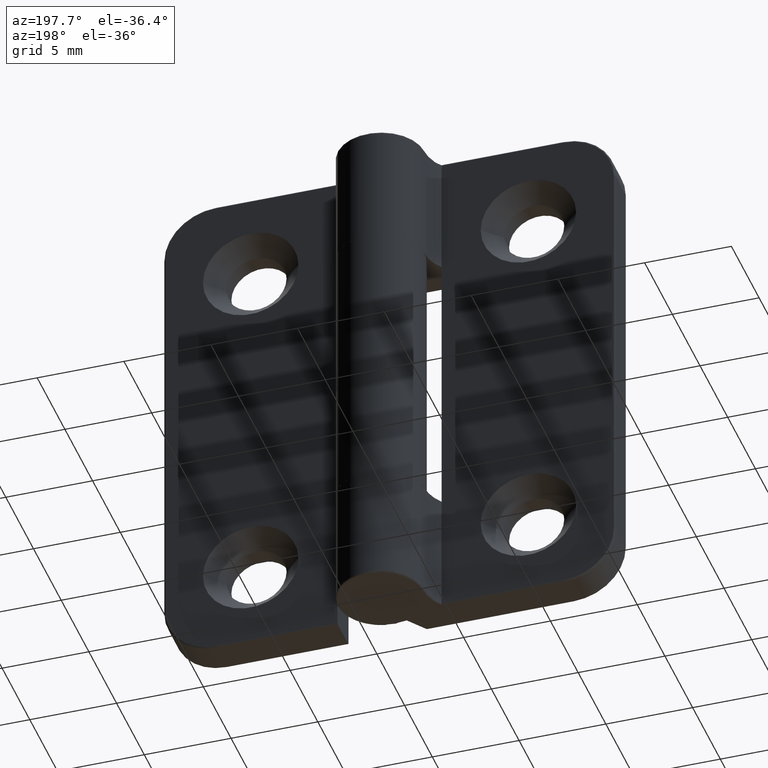
[diagram: clean part render]
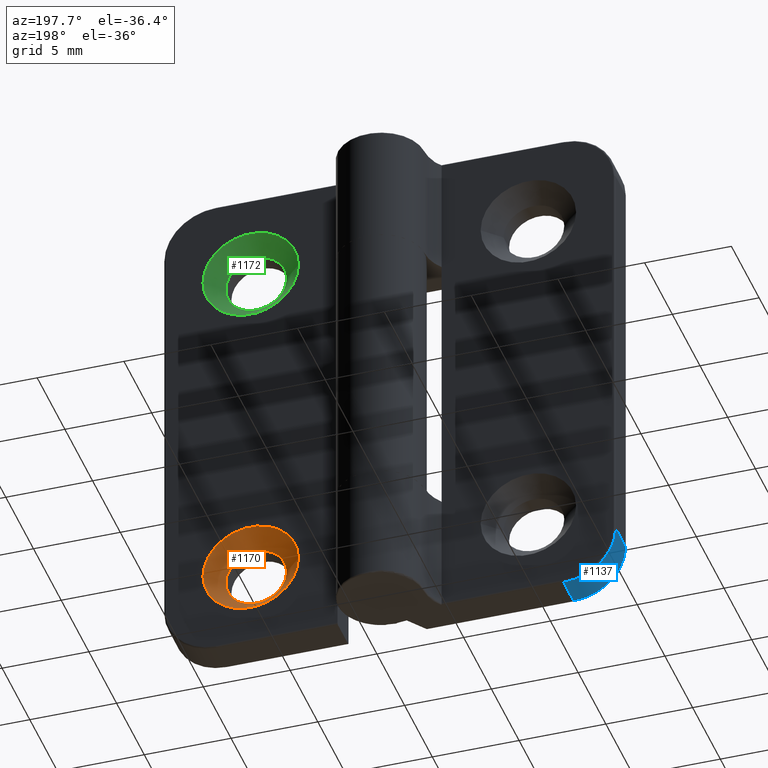
[diagram: same view with three faces highlighted in distinct colors, each labeled with its STEP entity id]
A machine part, auxiliary view with three faces highlighted in distinct colors.
Their STEP definitions:

[orange] entity #1170 — the highlighted conical surface has half-angle 45 deg.
#37=CONICAL_SURFACE('',#1327,2.25,45.);
#112=FACE_BOUND('',#357,.T.);
#191=CIRCLE('',#1319,2.75);
#195=CIRCLE('',#1328,1.75);
#263=FACE_OUTER_BOUND('',#356,.T.);
#356=EDGE_LOOP('',(#1066));
#357=EDGE_LOOP('',(#1067));
#605=VERTEX_POINT('',#2089);
#609=VERTEX_POINT('',#2105);
#759=EDGE_CURVE('',#605,#605,#191,.T.);
#766=EDGE_CURVE('',#609,#609,#195,.T.);
#1066=ORIENTED_EDGE('',*,*,#759,.F.);
#1067=ORIENTED_EDGE('',*,*,#766,.F.);
#1170=ADVANCED_FACE('',(#263,#112),#37,.F.);
#1319=AXIS2_PLACEMENT_3D('',#2090,#1686,#1687);
#1327=AXIS2_PLACEMENT_3D('',#2104,#1705,#1706);
#1328=AXIS2_PLACEMENT_3D('',#2106,#1707,#1708);
#1686=DIRECTION('center_axis',(-2.77555756156289E-17,-1.,0.));
#1687=DIRECTION('ref_axis',(1.,-2.77555756156289E-17,0.));
#1705=DIRECTION('center_axis',(2.77555756156289E-17,1.,0.));
#1706=DIRECTION('ref_axis',(1.,-2.77555756156289E-17,0.));
#1707=DIRECTION('center_axis',(2.77555756156289E-17,1.,0.));
#1708=DIRECTION('ref_axis',(1.,-2.77555756156289E-17,0.));
#2089=CARTESIAN_POINT('',(-5.25,2.,10.));
#2090=CARTESIAN_POINT('Origin',(-8.,2.,10.));
#2104=CARTESIAN_POINT('Origin',(-8.,1.5,10.));
#2105=CARTESIAN_POINT('',(-6.25,1.,10.));
#2106=CARTESIAN_POINT('Origin',(-8.,1.,10.));

[blue] entity #1137 — the highlighted cylindrical surface (partial cylindrical patch) has radius 3 mm, axis along (-0, 1, 0).
#72=CYLINDRICAL_SURFACE('',#1258,3.);
#138=CIRCLE('',#1218,3.);
#151=CIRCLE('',#1240,3.);
#230=FACE_OUTER_BOUND('',#311,.T.);
#311=EDGE_LOOP('',(#917,#918,#919,#920));
#405=LINE('',#1955,#475);
#406=LINE('',#1956,#476);
#475=VECTOR('',#1533,1.8);
#476=VECTOR('',#1534,1.79999999999999);
#542=VERTEX_POINT('',#1834);
#543=VERTEX_POINT('',#1838);
#558=VERTEX_POINT('',#1919);
#560=VERTEX_POINT('',#1925);
#656=EDGE_CURVE('',#543,#542,#138,.T.);
#680=EDGE_CURVE('',#560,#558,#151,.T.);
#695=EDGE_CURVE('',#543,#558,#405,.T.);
#696=EDGE_CURVE('',#560,#542,#406,.T.);
#917=ORIENTED_EDGE('',*,*,#656,.F.);
#918=ORIENTED_EDGE('',*,*,#695,.T.);
#919=ORIENTED_EDGE('',*,*,#680,.F.);
#920=ORIENTED_EDGE('',*,*,#696,.T.);
#1137=ADVANCED_FACE('',(#230),#72,.T.);
#1218=AXIS2_PLACEMENT_3D('',#1840,#1437,#1438);
#1240=AXIS2_PLACEMENT_3D('',#1927,#1489,#1490);
#1258=AXIS2_PLACEMENT_3D('',#1954,#1531,#1532);
#1437=DIRECTION('center_axis',(7.24058494320754E-17,-1.,0.));
#1438=DIRECTION('ref_axis',(-0.707106781186548,-5.20417042793042E-17,-0.707106781186547));
#1489=DIRECTION('center_axis',(2.77555756156289E-17,1.,0.));
#1490=DIRECTION('ref_axis',(-0.707106781186548,1.73472347597681E-17,-0.707106781186547));
#1531=DIRECTION('center_axis',(-1.11022302462516E-15,1.,0.));
#1532=DIRECTION('ref_axis',(-0.707106781186547,-7.85046229341887E-16,-0.707106781186548));
#1533=DIRECTION('',(-1.11022302462516E-15,1.,0.));
#1534=DIRECTION('',(1.11022302462516E-15,-1.,0.));
#1834=CARTESIAN_POINT('',(-10.,0.0999999999999995,-15.));
#1838=CARTESIAN_POINT('',(-13.,0.100000000000002,-12.));
#1840=CARTESIAN_POINT('Origin',(-10.,0.100000000000002,-12.));
#1919=CARTESIAN_POINT('',(-13.,1.9,-12.));
#1925=CARTESIAN_POINT('',(-10.,1.89999999999999,-15.));
#1927=CARTESIAN_POINT('Origin',(-10.,1.89999999999999,-12.));
#1954=CARTESIAN_POINT('Origin',(-10.,2.74999999623623,-12.));
#1955=CARTESIAN_POINT('',(-13.,2.74999999623622,-12.));
#1956=CARTESIAN_POINT('',(-10.,2.74999999623623,-15.));

[green] entity #1172 — the highlighted conical surface has half-angle 45 deg.
#38=CONICAL_SURFACE('',#1330,2.25,45.);
#114=FACE_BOUND('',#361,.T.);
#192=CIRCLE('',#1320,2.75);
#196=CIRCLE('',#1331,1.75);
#265=FACE_OUTER_BOUND('',#360,.T.);
#360=EDGE_LOOP('',(#1070));
#361=EDGE_LOOP('',(#1071));
#606=VERTEX_POINT('',#2091);
#610=VERTEX_POINT('',#2109);
#760=EDGE_CURVE('',#606,#606,#192,.T.);
#767=EDGE_CURVE('',#610,#610,#196,.T.);
#1070=ORIENTED_EDGE('',*,*,#760,.F.);
#1071=ORIENTED_EDGE('',*,*,#767,.F.);
#1172=ADVANCED_FACE('',(#265,#114),#38,.F.);
#1320=AXIS2_PLACEMENT_3D('',#2092,#1688,#1689);
#1330=AXIS2_PLACEMENT_3D('',#2108,#1711,#1712);
#1331=AXIS2_PLACEMENT_3D('',#2110,#1713,#1714);
#1688=DIRECTION('center_axis',(-2.77555756156289E-17,-1.,0.));
#1689=DIRECTION('ref_axis',(1.,-2.77555756156289E-17,0.));
#1711=DIRECTION('center_axis',(2.77555756156289E-17,1.,0.));
#1712=DIRECTION('ref_axis',(1.,-2.77555756156289E-17,0.));
#1713=DIRECTION('center_axis',(2.77555756156289E-17,1.,0.));
#1714=DIRECTION('ref_axis',(1.,-2.77555756156289E-17,0.));
#2091=CARTESIAN_POINT('',(-5.25,2.,-10.));
#2092=CARTESIAN_POINT('Origin',(-8.,2.,-10.));
#2108=CARTESIAN_POINT('Origin',(-8.,1.5,-10.));
#2109=CARTESIAN_POINT('',(-6.25,1.,-10.));
#2110=CARTESIAN_POINT('Origin',(-8.,1.,-10.));